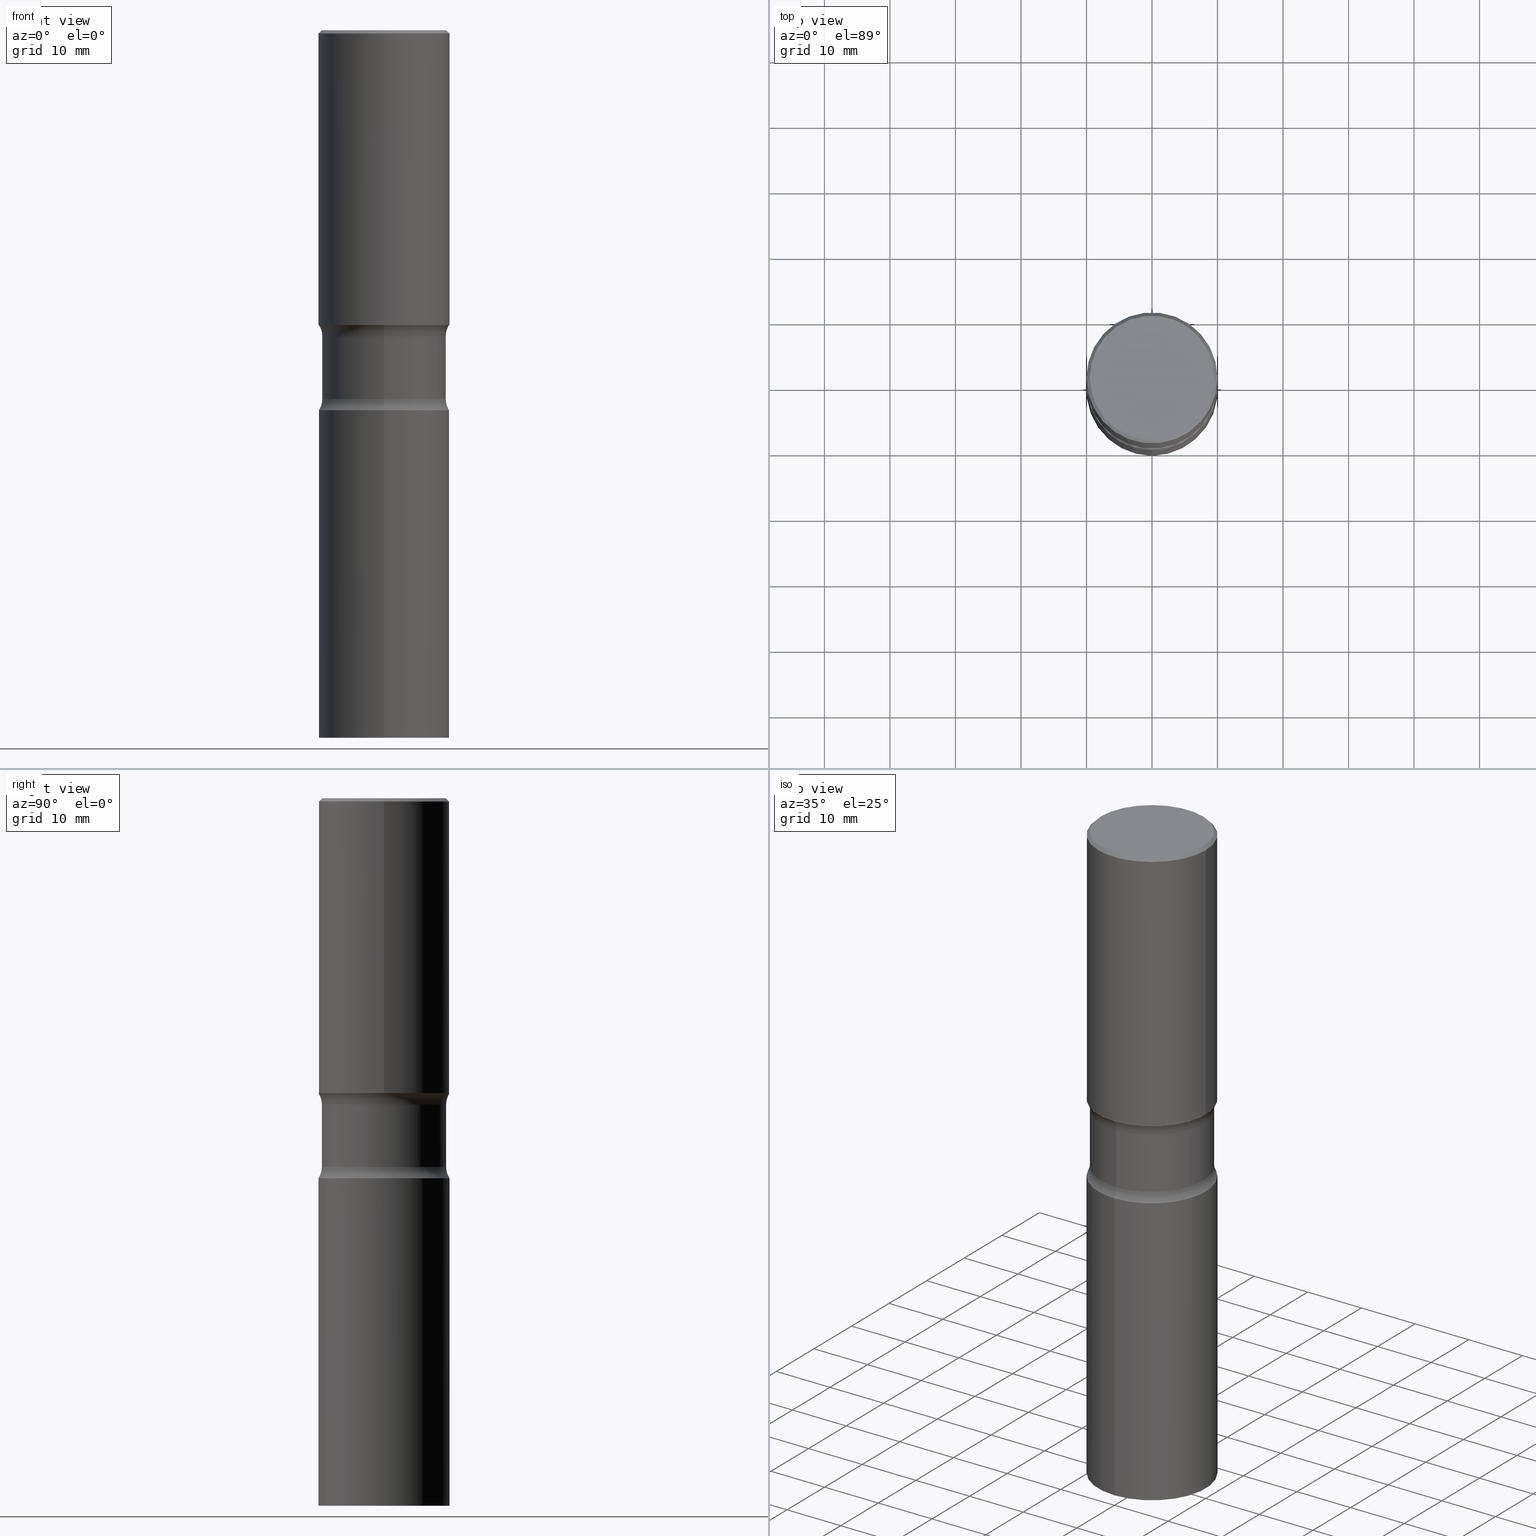
[diagram: canonical four-view strip — front | top / right | iso, engineering-drawing reading convention]
A machine part, canonical four-view strip (front | top / right | iso — engineering-drawing reading convention). The complete STEP part file that produces these views, byte-faithful:
ISO-10303-21;
HEADER;
FILE_DESCRIPTION (( 'STEP AP203' ),
    '1' );
FILE_NAME ('44636.STEP',
    '2024-03-11T13:38:39',
    ( '' ),
    ( '' ),
    'SwSTEP 2.0',
    'SolidWorks 2023',
    '' );
FILE_SCHEMA (( 'CONFIG_CONTROL_DESIGN' ));
ENDSEC;

DATA;
#1 = EDGE_CURVE ( 'NONE', #389, #82, #332, .T. ) ;
#2 = ORIENTED_EDGE ( 'NONE', *, *, #257, .F. ) ;
#3 = COORDINATED_UNIVERSAL_TIME_OFFSET ( 5, 0, .BEHIND. ) ;
#4 = APPROVAL ( #235, 'UNSPECIFIED' ) ;
#5 = ORIENTED_EDGE ( 'NONE', *, *, #196, .F. ) ;
#6 = CLOSED_SHELL ( 'NONE', ( #345, #102, #432, #325, #49, #431 ) ) ;
#7 = COORDINATED_UNIVERSAL_TIME_OFFSET ( 5, 0, .BEHIND. ) ;
#8 = LOCAL_TIME ( 9, 38, 39.00000000000000000, #243 ) ;
#9 = DIRECTION ( 'NONE',  ( -2.445468806185136597E-29, 3.491481338843145583E-15, 1.000000000000000000 ) ) ;
#10 = ORIENTED_EDGE ( 'NONE', *, *, #341, .T. ) ;
#11 = EDGE_CURVE ( 'NONE', #263, #273, #190, .T. ) ;
#12 = DIRECTION ( 'NONE',  ( 6.982962677686265922E-15, 1.000000000000000000, -3.657092360996335267E-15 ) ) ;
#13 = CARTESIAN_POINT ( 'NONE',  ( 5.584228018923760468E-29, -7.972797637248323132E-15, -2.283500000000000085 ) ) ;
#14 = AXIS2_PLACEMENT_3D ( 'NONE', #191, #83, #461 ) ;
#15 = MANIFOLD_SOLID_BREP ( 'Body-Move/Copy2[1]', #275 ) ;
#16 = CARTESIAN_POINT ( 'NONE',  ( 5.419952928499140621E-29, -7.731566087902375701E-15, -2.215368069159901143 ) ) ;
#17 = DIRECTION ( 'NONE',  ( 2.422342619709238593E-29, -3.524599354137422645E-15, -1.000000000000000000 ) ) ;
#18 = EDGE_CURVE ( 'NONE', #273, #263, #285, .T. ) ;
#19 = MANIFOLD_SOLID_BREP ( 'Body-Move/Copy2[2]', #6 ) ;
#20 = CARTESIAN_POINT ( 'NONE',  ( 2.749192406205126998E-15, 0.3936999999999938882, -1.771700000000000941 ) ) ;
#21 = VERTEX_POINT ( 'NONE', #254 ) ;
#22 = CARTESIAN_POINT ( 'NONE',  ( -2.749192406205083217E-15, -0.3937000000000001054, 1.374407621938595715E-15 ) ) ;
#23 = DIRECTION ( 'NONE',  ( 6.982962677686265922E-15, 1.000000000000000000, -3.491002341728716197E-15 ) ) ;
#24 = CC_DESIGN_APPROVAL ( #404, ( #175 ) ) ;
#25 = VERTEX_POINT ( 'NONE', #336 ) ;
#26 = ADVANCED_FACE ( 'NONE', ( #296 ), #390, .F. ) ;
#27 = CARTESIAN_POINT ( 'NONE',  ( 4.499251595492830041E-29, -6.423738853135956332E-15, -1.839831930840098329 ) ) ;
#28 = FACE_OUTER_BOUND ( 'NONE', #310, .T. ) ;
#29 = DIRECTION ( 'NONE',  ( -2.445468806185136597E-29, 3.491481338843145583E-15, 1.000000000000000000 ) ) ;
#30 = ORIENTED_EDGE ( 'NONE', *, *, #71, .F. ) ;
#31 = CARTESIAN_POINT ( 'NONE',  ( 0.000000000000000000, 0.000000000000000000, 0.000000000000000000 ) ) ;
#32 = ORIENTED_EDGE ( 'NONE', *, *, #400, .T. ) ;
#33 = AXIS2_PLACEMENT_3D ( 'NONE', #244, #412, #125 ) ;
#34 = DIRECTION ( 'NONE',  ( -2.445803288082414641E-29, 3.491002341728715803E-15, 1.000000000000000000 ) ) ;
#35 = EDGE_LOOP ( 'NONE', ( #260, #374, #202, #408 ) ) ;
#36 = FACE_OUTER_BOUND ( 'NONE', #35, .T. ) ;
#37 = ORIENTED_EDGE ( 'NONE', *, *, #252, .T. ) ;
#38 = DIRECTION ( 'NONE',  ( 2.422342619709238593E-29, -3.524599354137423040E-15, -1.000000000000000000 ) ) ;
#39 = APPROVAL_STATUS ( 'not_yet_approved' ) ;
#40 = VERTEX_POINT ( 'NONE', #453 ) ;
#41 = AXIS2_PLACEMENT_3D ( 'NONE', #371, #57, #487 ) ;
#42 = AXIS2_PLACEMENT_3D ( 'NONE', #407, #76, #258 ) ;
#43 = AXIS2_PLACEMENT_3D ( 'NONE', #266, #425, #269 ) ;
#44 = PERSON_AND_ORGANIZATION ( #443, #342 ) ;
#45 = DATE_AND_TIME ( #160, #8 ) ;
#46 = EDGE_LOOP ( 'NONE', ( #426, #471, #162, #482 ) ) ;
#47 = ORIENTED_EDGE ( 'NONE', *, *, #147, .F. ) ;
#48 = SECURITY_CLASSIFICATION_LEVEL ( 'unclassified' ) ;
#49 = ADVANCED_FACE ( 'NONE', ( #178 ), #451, .F. ) ;
#50 = VERTEX_POINT ( 'NONE', #59 ) ;
#51 = ADVANCED_FACE ( 'NONE', ( #493 ), #489, .T. ) ;
#52 = AXIS2_PLACEMENT_3D ( 'NONE', #414, #174, #486 ) ;
#53 = AXIS2_PLACEMENT_3D ( 'NONE', #154, #256, #464 ) ;
#54 = ORIENTED_EDGE ( 'NONE', *, *, #187, .F. ) ;
#55 = CARTESIAN_POINT ( 'NONE',  ( 2.609533152651356226E-15, 0.3736999999999998101, -1.300498063835582617E-15 ) ) ;
#56 = ORIENTED_EDGE ( 'NONE', *, *, #351, .T. ) ;
#57 = DIRECTION ( 'NONE',  ( 2.422342619709238593E-29, -3.524599354137422645E-15, -1.000000000000000000 ) ) ;
#58 = EDGE_CURVE ( 'NONE', #419, #276, #338, .T. ) ;
#59 = CARTESIAN_POINT ( 'NONE',  ( 2.749192406205139620E-15, 0.3936999999999921673, -2.283500000000001418 ) ) ;
#60 = AXIS2_PLACEMENT_3D ( 'NONE', #13, #368, #372 ) ;
#61 = CONICAL_SURFACE ( 'NONE', #268, 0.3936999999999998834, 0.7853981633974473908 ) ;
#62 = CARTESIAN_POINT ( 'NONE',  ( -0.3936999999999999389, 2.797406750687513998E-15, -1.936584745033356455E-29 ) ) ;
#63 = ORIENTED_EDGE ( 'NONE', *, *, #364, .F. ) ;
#64 = CC_DESIGN_DATE_AND_TIME_ASSIGNMENT ( #45, #200, ( #251 ) ) ;
#65 = FACE_OUTER_BOUND ( 'NONE', #106, .T. ) ;
#66 = CYLINDRICAL_SURFACE ( 'NONE', #155, 0.3936999999999999389 ) ;
#67 = DIRECTION ( 'NONE',  ( -2.445803288082414641E-29, 3.491002341728715803E-15, 1.000000000000000000 ) ) ;
#68 = ORIENTED_EDGE ( 'NONE', *, *, #401, .F. ) ;
#69 = FACE_OUTER_BOUND ( 'NONE', #287, .T. ) ;
#70 = CARTESIAN_POINT ( 'NONE',  ( 5.584228018923760468E-29, -7.972797637248323132E-15, -2.283500000000000085 ) ) ;
#71 = EDGE_CURVE ( 'NONE', #276, #419, #181, .T. ) ;
#72 = AXIS2_PLACEMENT_3D ( 'NONE', #146, #145, #501 ) ;
#73 = FACE_OUTER_BOUND ( 'NONE', #217, .T. ) ;
#74 = PERSON_AND_ORGANIZATION_ROLE ( 'design_owner' ) ;
#75 = CARTESIAN_POINT ( 'NONE',  ( 0.3936999999999999389, -2.749192406205082822E-15, 1.919750796630859611E-29 ) ) ;
#76 = DIRECTION ( 'NONE',  ( 2.422342619709238593E-29, -3.524599354137422645E-15, -1.000000000000000000 ) ) ;
#77 = DIRECTION ( 'NONE',  ( -0.7071067811865469066, 2.468850131082250355E-15, -0.7071067811865481278 ) ) ;
#78 = CARTESIAN_POINT ( 'NONE',  ( 0.000000000000000000, 0.000000000000000000, 0.000000000000000000 ) ) ;
#79 = ADVANCED_FACE ( 'NONE', ( #205 ), #208, .F. ) ;
#80 = PERSON_AND_ORGANIZATION ( #443, #342 ) ;
#81 = CIRCLE ( 'NONE', #365, 0.1249999999999999584 ) ;
#82 = VERTEX_POINT ( 'NONE', #417 ) ;
#83 = DIRECTION ( 'NONE',  ( -2.445468806185136597E-29, 3.491481338843145583E-15, 1.000000000000000000 ) ) ;
#84 = LENGTH_MEASURE_WITH_UNIT ( LENGTH_MEASURE( 0.02539999999999999897 ), #304 );
#85 = ADVANCED_FACE ( 'NONE', ( #416 ), #138, .F. ) ;
#86 = ADVANCED_FACE ( 'NONE', ( #28 ), #347, .T. ) ;
#87 = CIRCLE ( 'NONE', #42, 0.3937000000000000499 ) ;
#88 = EDGE_CURVE ( 'NONE', #402, #21, #233, .T. ) ;
#89 = AXIS2_PLACEMENT_3D ( 'NONE', #315, #151, #186 ) ;
#90 = PERSON_AND_ORGANIZATION_ROLE ( 'creator' ) ;
#91 = DIRECTION ( 'NONE',  ( -1.000000000000000000, 6.982962677686265922E-15, -4.876176775795935793E-29 ) ) ;
#92 = APPROVAL_DATE_TIME ( #433, #291 ) ;
#93 = ORIENTED_EDGE ( 'NONE', *, *, #88, .F. ) ;
#94 = TOROIDAL_SURFACE ( 'NONE', #298, 0.4984999999999999987, 0.1249999999999999306 ) ;
#95 = APPLICATION_CONTEXT ( 'configuration controlled 3d designs of mechanical parts and assemblies' ) ;
#96 = DIRECTION ( 'NONE',  ( 1.000000000000000000, -6.982962677686266711E-15, 0.000000000000000000 ) ) ;
#97 = CARTESIAN_POINT ( 'NONE',  ( 4.510275735406058081E-29, -6.407951657325135987E-15, -1.839831930840098329 ) ) ;
#98 = LINE ( 'NONE', #207, #405 ) ;
#99 = CARTESIAN_POINT ( 'NONE',  ( 1.035337325523382990E-28, -1.490987767595703701E-14, -4.251999999999999780 ) ) ;
#100 = CIRCLE ( 'NONE', #391, 0.3735000000000001097 ) ;
#101 = DIRECTION ( 'NONE',  ( 2.422342619709238593E-29, -3.524599354137422645E-15, -1.000000000000000000 ) ) ;
#102 = ADVANCED_FACE ( 'NONE', ( #210 ), #253, .T. ) ;
#103 = CARTESIAN_POINT ( 'NONE',  ( -2.631687031945114564E-15, -0.3735000000000064380, -1.839831930840096996 ) ) ;
#104 = DIRECTION ( 'NONE',  ( 6.982962677686265922E-15, 1.000000000000000000, -2.925673888797068529E-15 ) ) ;
#105 = CARTESIAN_POINT ( 'NONE',  ( 4.332637083918205306E-29, -6.185857488028398715E-15, -1.771699999999999608 ) ) ;
#106 = EDGE_LOOP ( 'NONE', ( #327, #394, #437, #63 ) ) ;
#107 = VECTOR ( 'NONE', #466, 39.37007874015748143 ) ;
#108 = CYLINDRICAL_SURFACE ( 'NONE', #434, 0.3937000000000001054 ) ;
#109 = DIRECTION ( 'NONE',  ( -6.982962677686265133E-15, -1.000000000000000000, 0.000000000000000000 ) ) ;
#110 = CARTESIAN_POINT ( 'NONE',  ( 0.000000000000000000, 0.000000000000000000, 0.000000000000000000 ) ) ;
#111 = EDGE_LOOP ( 'NONE', ( #56, #188 ) ) ;
#112 = PRODUCT_DEFINITION_SHAPE ( 'NONE', 'NONE',  #251 ) ;
#113 =( CONVERSION_BASED_UNIT ( 'INCH', #84 ) LENGTH_UNIT ( ) NAMED_UNIT ( #140 ) );
#114 = AXIS2_PLACEMENT_3D ( 'NONE', #99, #247, #104 ) ;
#115 = VECTOR ( 'NONE', #446, 39.37007874015748143 ) ;
#116 = EDGE_CURVE ( 'NONE', #21, #402, #87, .T. ) ;
#117 = APPLICATION_PROTOCOL_DEFINITION ( 'international standard', 'config_control_design', 1994, #95 ) ;
#118 = ORIENTED_EDGE ( 'NONE', *, *, #58, .T. ) ;
#119 = PERSON_AND_ORGANIZATION ( #443, #342 ) ;
#120 = ORIENTED_EDGE ( 'NONE', *, *, #11, .F. ) ;
#121 = LOCAL_TIME ( 9, 38, 39.00000000000000000, #3 ) ;
#122 = PERSON_AND_ORGANIZATION ( #443, #342 ) ;
#123 = EDGE_LOOP ( 'NONE', ( #5, #355, #10, #47 ) ) ;
#124 = CARTESIAN_POINT ( 'NONE',  ( 5.419952928499140621E-29, -7.731566087902375701E-15, -2.215368069159901143 ) ) ;
#125 = DIRECTION ( 'NONE',  ( -1.000000000000000000, 6.982962677686266711E-15, 0.000000000000000000 ) ) ;
#126 = PERSON_AND_ORGANIZATION ( #443, #342 ) ;
#127 = ORIENTED_EDGE ( 'NONE', *, *, #11, .T. ) ;
#128 = VERTEX_POINT ( 'NONE', #300 ) ;
#129 = VECTOR ( 'NONE', #38, 39.37007874015748143 ) ;
#130 = EDGE_CURVE ( 'NONE', #383, #50, #449, .T. ) ;
#131 = CARTESIAN_POINT ( 'NONE',  ( 4.345236855569004281E-29, -6.167813897889988397E-15, -1.771699999999999608 ) ) ;
#132 = ADVANCED_FACE ( 'NONE', ( #452 ), #136, .T. ) ;
#133 = DIRECTION ( 'NONE',  ( -2.445468806185136597E-29, 3.491481338843145583E-15, 1.000000000000000000 ) ) ;
#134 = FACE_OUTER_BOUND ( 'NONE', #465, .T. ) ;
#135 = EDGE_LOOP ( 'NONE', ( #68, #118, #37, #502 ) ) ;
#136 = CYLINDRICAL_SURFACE ( 'NONE', #490, 0.3735000000000000542 ) ;
#137 = DIRECTION ( 'NONE',  ( 2.422342619709238593E-29, -3.524599354137422645E-15, -1.000000000000000000 ) ) ;
#138 = PLANE ( 'NONE',  #398 ) ;
#139 = CIRCLE ( 'NONE', #427, 0.3735000000000001097 ) ;
#140 = DIMENSIONAL_EXPONENTS ( 1.000000000000000000, 0.000000000000000000, 0.000000000000000000, 0.000000000000000000, 0.000000000000000000, 0.000000000000000000, 0.000000000000000000 ) ;
#141 = DIRECTION ( 'NONE',  ( -6.982962677686265133E-15, -1.000000000000000000, 0.000000000000000000 ) ) ;
#142 = DIRECTION ( 'NONE',  ( 2.422342619709238593E-29, -3.524599354137422645E-15, -1.000000000000000000 ) ) ;
#143 = DIRECTION ( 'NONE',  ( 1.000000000000000000, -6.982962677686266711E-15, 4.876212485538977921E-29 ) ) ;
#144 = DIRECTION ( 'NONE',  ( -2.445803288082414641E-29, 3.491002341728715803E-15, 1.000000000000000000 ) ) ;
#145 = DIRECTION ( 'NONE',  ( 1.000000000000000000, -6.860497997771530774E-15, 4.840393300909900172E-29 ) ) ;
#146 = CARTESIAN_POINT ( 'NONE',  ( -3.419958251889054030E-15, -0.4985000000000077147, -2.215368069159899811 ) ) ;
#147 = EDGE_CURVE ( 'NONE', #25, #237, #346, .T. ) ;
#148 = EDGE_LOOP ( 'NONE', ( #469, #397 ) ) ;
#149 = CIRCLE ( 'NONE', #43, 0.3937000000000001054 ) ;
#150 = FACE_OUTER_BOUND ( 'NONE', #211, .T. ) ;
#151 = DIRECTION ( 'NONE',  ( 2.422342619709238593E-29, -3.524599354137422645E-15, -1.000000000000000000 ) ) ;
#152 = ORIENTED_EDGE ( 'NONE', *, *, #484, .T. ) ;
#153 = DIRECTION ( 'NONE',  ( -6.982962677686265133E-15, -1.000000000000000000, 3.491002341728715803E-15 ) ) ;
#154 = CARTESIAN_POINT ( 'NONE',  ( -3.419958251889063102E-15, -0.4985000000000064380, -1.839831930840096774 ) ) ;
#155 = AXIS2_PLACEMENT_3D ( 'NONE', #478, #367, #171 ) ;
#156 = CYLINDRICAL_SURFACE ( 'NONE', #472, 0.3937000000000001054 ) ;
#157 = LOCAL_TIME ( 9, 38, 39.00000000000000000, #280 ) ;
#158 = APPROVAL_DATE_TIME ( #272, #404 ) ;
#159 = EDGE_LOOP ( 'NONE', ( #248, #152 ) ) ;
#160 = CALENDAR_DATE ( 2024, 11, 3 ) ;
#161 = CALENDAR_DATE ( 2024, 11, 3 ) ;
#162 = ORIENTED_EDGE ( 'NONE', *, *, #319, .F. ) ;
#163 = ADVANCED_FACE ( 'NONE', ( #65 ), #94, .F. ) ;
#164 = AXIS2_PLACEMENT_3D ( 'NONE', #55, #172, #91 ) ;
#165 = CIRCLE ( 'NONE', #53, 0.1250000000000000278 ) ;
#166 = DATE_TIME_ROLE ( 'classification_date' ) ;
#167 = DIRECTION ( 'NONE',  ( 6.982962677686265922E-15, 1.000000000000000000, -3.657092360996335267E-15 ) ) ;
#168 = CC_DESIGN_PERSON_AND_ORGANIZATION_ASSIGNMENT ( #122, #201, ( #175 ) ) ;
#169 = VERTEX_POINT ( 'NONE', #209 ) ;
#170 = ORIENTED_EDGE ( 'NONE', *, *, #462, .F. ) ;
#171 = DIRECTION ( 'NONE',  ( 1.000000000000000000, -6.982962677686266711E-15, 4.876176775795935793E-29 ) ) ;
#172 = DIRECTION ( 'NONE',  ( 2.438088387897960049E-29, -3.491481338843145188E-15, -1.000000000000000000 ) ) ;
#173 = VECTOR ( 'NONE', #494, 39.37007874015748143 ) ;
#174 = DIRECTION ( 'NONE',  ( -2.445468806185136597E-29, 3.491481338843145583E-15, 1.000000000000000000 ) ) ;
#175 = PRODUCT_DEFINITION_FORMATION_WITH_SPECIFIED_SOURCE ( 'ANY', '', #223, .NOT_KNOWN. ) ;
#176 = CARTESIAN_POINT ( 'NONE',  ( 1.039955558092642645E-28, -1.484374195703049851E-14, -4.251999999999999780 ) ) ;
#177 = ADVANCED_FACE ( 'NONE', ( #69 ), #305, .F. ) ;
#178 = FACE_OUTER_BOUND ( 'NONE', #148, .T. ) ;
#179 = AXIS2_PLACEMENT_3D ( 'NONE', #328, #288, #492 ) ;
#180 = CARTESIAN_POINT ( 'NONE',  ( 1.039955558092642645E-28, -1.484374195703049851E-14, -4.251999999999999780 ) ) ;
#181 = CIRCLE ( 'NONE', #480, 0.3734999999999999987 ) ;
#182 = EDGE_LOOP ( 'NONE', ( #460, #30, #352, #279 ) ) ;
#183 = DIRECTION ( 'NONE',  ( 2.422342619709238593E-29, -3.524599354137422645E-15, -1.000000000000000000 ) ) ;
#184 = ORIENTED_EDGE ( 'NONE', *, *, #388, .T. ) ;
#185 = DIRECTION ( 'NONE',  ( 2.422342619709238593E-29, -3.524599354137422645E-15, -1.000000000000000000 ) ) ;
#186 = DIRECTION ( 'NONE',  ( 6.982962677686265133E-15, 1.000000000000000000, -3.469453890861395179E-15 ) ) ;
#187 = EDGE_CURVE ( 'NONE', #273, #323, #302, .T. ) ;
#188 = ORIENTED_EDGE ( 'NONE', *, *, #196, .T. ) ;
#189 = MANIFOLD_SOLID_BREP ( 'Body-Move/Copy2[4]', #479 ) ;
#190 = CIRCLE ( 'NONE', #507, 0.3937000000000001054 ) ;
#191 = CARTESIAN_POINT ( 'NONE',  ( 4.332637083918205306E-29, -6.185857488028398715E-15, -1.771699999999999608 ) ) ;
#192 = DIRECTION ( 'NONE',  ( 6.982962677686265922E-15, 1.000000000000000000, -3.524599354137422251E-15 ) ) ;
#193 = ORIENTED_EDGE ( 'NONE', *, *, #440, .T. ) ;
#194 = DIRECTION ( 'NONE',  ( -6.982962677686265133E-15, -1.000000000000000000, 3.469453890861395179E-15 ) ) ;
#195 = EDGE_LOOP ( 'NONE', ( #429, #344, #435, #54 ) ) ;
#196 = EDGE_CURVE ( 'NONE', #389, #25, #213, .T. ) ;
#197 = APPROVAL_ROLE ( '' ) ;
#198 = ORIENTED_EDGE ( 'NONE', *, *, #187, .T. ) ;
#199 = APPROVAL_PERSON_ORGANIZATION ( #80, #291, #197 ) ;
#200 = DATE_TIME_ROLE ( 'creation_date' ) ;
#201 = PERSON_AND_ORGANIZATION_ROLE ( 'design_supplier' ) ;
#202 = ORIENTED_EDGE ( 'NONE', *, *, #257, .T. ) ;
#203 = DIRECTION ( 'NONE',  ( 6.982962677686265922E-15, 1.000000000000000000, -3.657092360996336056E-15 ) ) ;
#204 = AXIS2_PLACEMENT_3D ( 'NONE', #105, #381, #348 ) ;
#205 = FACE_OUTER_BOUND ( 'NONE', #320, .T. ) ;
#206 = DIRECTION ( 'NONE',  ( 6.982962677686265133E-15, 1.000000000000000000, -3.469453890861395179E-15 ) ) ;
#207 = CARTESIAN_POINT ( 'NONE',  ( -2.562396002167563676E-15, -0.3735000000000149312, -4.251999999999998892 ) ) ;
#208 = PLANE ( 'NONE',  #60 ) ;
#209 = CARTESIAN_POINT ( 'NONE',  ( 0.3937000000000000499, -8.935049894233482720E-15, -1.771699999999999608 ) ) ;
#210 = FACE_OUTER_BOUND ( 'NONE', #123, .T. ) ;
#211 = EDGE_LOOP ( 'NONE', ( #231, #334, #226, #184 ) ) ;
#212 = CARTESIAN_POINT ( 'NONE',  ( 5.417613507349135172E-29, -7.734916272140765514E-15, -2.215368069159901143 ) ) ;
#213 = CIRCLE ( 'NONE', #369, 0.3736999999999998101 ) ;
#214 = DIRECTION ( 'NONE',  ( 6.982962677686265922E-15, 1.000000000000000000, -3.657092360996336056E-15 ) ) ;
#215 = APPROVAL_PERSON_ORGANIZATION ( #119, #404, #360 ) ;
#216 = ADVANCED_FACE ( 'NONE', ( #73 ), #454, .F. ) ;
#217 = EDGE_LOOP ( 'NONE', ( #93, #498 ) ) ;
#218 = LINE ( 'NONE', #75, #107 ) ;
#219 = CC_DESIGN_DATE_AND_TIME_ASSIGNMENT ( #438, #166, ( #508 ) ) ;
#220 = DIRECTION ( 'NONE',  ( 6.982962677686265922E-15, 1.000000000000000000, -3.524599354137422251E-15 ) ) ;
#221 = DIRECTION ( 'NONE',  ( 0.000000000000000000, 0.000000000000000000, 1.000000000000000000 ) ) ;
#222 = ORIENTED_EDGE ( 'NONE', *, *, #265, .F. ) ;
#223 = PRODUCT ( '44636', '44636', '', ( #504 ) ) ;
#224 = DIRECTION ( 'NONE',  ( 1.000000000000000000, 0.000000000000000000, 0.000000000000000000 ) ) ;
#225 = AXIS2_PLACEMENT_3D ( 'NONE', #366, #9, #96 ) ;
#226 = ORIENTED_EDGE ( 'NONE', *, *, #147, .T. ) ;
#227 = DIRECTION ( 'NONE',  ( 2.422342619709238593E-29, -3.524599354137422645E-15, -1.000000000000000000 ) ) ;
#228 = EDGE_CURVE ( 'NONE', #40, #169, #439, .T. ) ;
#229 = ORIENTED_EDGE ( 'NONE', *, *, #497, .T. ) ;
#230 = DIRECTION ( 'NONE',  ( 2.445468806185136597E-29, -3.491481338843145583E-15, -1.000000000000000000 ) ) ;
#231 = ORIENTED_EDGE ( 'NONE', *, *, #1, .F. ) ;
#232 = CARTESIAN_POINT ( 'NONE',  ( 2.608136560115865171E-15, 0.3734999999999935594, -1.839831930840099661 ) ) ;
#233 = CIRCLE ( 'NONE', #245, 0.3937000000000000499 ) ;
#234 = LOCAL_TIME ( 9, 38, 39.00000000000000000, #7 ) ;
#235 = APPROVAL_STATUS ( 'not_yet_approved' ) ;
#236 = SHAPE_DEFINITION_REPRESENTATION ( #112, #295 ) ;
#237 = VERTEX_POINT ( 'NONE', #445 ) ;
#238 = APPROVAL_ROLE ( '' ) ;
#239 = EDGE_CURVE ( 'NONE', #323, #128, #357, .T. ) ;
#240 = FACE_OUTER_BOUND ( 'NONE', #111, .T. ) ;
#241 = AXIS2_PLACEMENT_3D ( 'NONE', #311, #227, #192 ) ;
#242 = LOCAL_TIME ( 9, 38, 39.00000000000000000, #358 ) ;
#243 = COORDINATED_UNIVERSAL_TIME_OFFSET ( 5, 0, .BEHIND. ) ;
#244 = CARTESIAN_POINT ( 'NONE',  ( 4.890937612370294178E-31, -6.982962677686321191E-17, -0.02000000000000008715 ) ) ;
#245 = AXIS2_PLACEMENT_3D ( 'NONE', #131, #101, #290 ) ;
#246 = FACE_OUTER_BOUND ( 'NONE', #182, .T. ) ;
#247 = DIRECTION ( 'NONE',  ( 2.422342619709238593E-29, -3.524599354137422645E-15, -1.000000000000000000 ) ) ;
#248 = ORIENTED_EDGE ( 'NONE', *, *, #239, .T. ) ;
#249 = CARTESIAN_POINT ( 'NONE',  ( 1.035337325523382990E-28, -1.490987767595703701E-14, -4.251999999999999780 ) ) ;
#250 = DIRECTION ( 'NONE',  ( 1.000000000000000000, -6.982962677686265922E-15, 4.876176775795935793E-29 ) ) ;
#251 = PRODUCT_DEFINITION ( 'UNKNOWN', '', #175, #292 ) ;
#252 = EDGE_CURVE ( 'NONE', #276, #476, #261, .T. ) ;
#253 = CONICAL_SURFACE ( 'NONE', #33, 0.3936999999999998834, 0.7853981633974473908 ) ;
#254 = CARTESIAN_POINT ( 'NONE',  ( -2.700978061722607865E-15, -0.3937000000000062117, -1.771699999999998276 ) ) ;
#255 = APPROVAL_PERSON_ORGANIZATION ( #278, #4, #238 ) ;
#256 = DIRECTION ( 'NONE',  ( 1.000000000000000000, -6.860497997771530774E-15, 4.840393300909900172E-29 ) ) ;
#257 = EDGE_CURVE ( 'NONE', #169, #82, #218, .T. ) ;
#258 = DIRECTION ( 'NONE',  ( 6.982962677686265133E-15, 1.000000000000000000, -3.469453890861395573E-15 ) ) ;
#259 = CARTESIAN_POINT ( 'NONE',  ( 2.608136560115875426E-15, 0.3734999999999923936, -2.215368069159902475 ) ) ;
#260 = ORIENTED_EDGE ( 'NONE', *, *, #400, .F. ) ;
#261 = LINE ( 'NONE', #395, #129 ) ;
#262 = DIRECTION ( 'NONE',  ( -6.982962677686265133E-15, -1.000000000000000000, 3.491002341728715803E-15 ) ) ;
#263 = VERTEX_POINT ( 'NONE', #384 ) ;
#264 = LINE ( 'NONE', #307, #339 ) ;
#265 = EDGE_CURVE ( 'NONE', #263, #128, #264, .T. ) ;
#266 = CARTESIAN_POINT ( 'NONE',  ( 5.584991808336194421E-29, -7.971703847337524080E-15, -2.283500000000000085 ) ) ;
#267 = CIRCLE ( 'NONE', #52, 0.3936999999999998834 ) ;
#268 = AXIS2_PLACEMENT_3D ( 'NONE', #392, #230, #387 ) ;
#269 = DIRECTION ( 'NONE',  ( -6.982962677686265133E-15, -1.000000000000000000, 3.469453890861395179E-15 ) ) ;
#270 = EDGE_CURVE ( 'NONE', #169, #40, #456, .T. ) ;
#271 = DIRECTION ( 'NONE',  ( -2.445803288082414921E-29, 3.491002341728716197E-15, 1.000000000000000000 ) ) ;
#272 = DATE_AND_TIME ( #470, #121 ) ;
#273 = VERTEX_POINT ( 'NONE', #506 ) ;
#274 = CALENDAR_DATE ( 2024, 11, 3 ) ;
#275 = CLOSED_SHELL ( 'NONE', ( #468, #308, #85, #86 ) ) ;
#276 = VERTEX_POINT ( 'NONE', #232 ) ;
#277 = AXIS2_PLACEMENT_3D ( 'NONE', #430, #313, #194 ) ;
#278 = PERSON_AND_ORGANIZATION ( #443, #342 ) ;
#279 = ORIENTED_EDGE ( 'NONE', *, *, #88, .T. ) ;
#280 = COORDINATED_UNIVERSAL_TIME_OFFSET ( 5, 0, .BEHIND. ) ;
#281 = ORIENTED_EDGE ( 'NONE', *, *, #270, .T. ) ;
#282 = EDGE_CURVE ( 'NONE', #276, #402, #376, .T. ) ;
#283 = APPROVAL_DATE_TIME ( #321, #4 ) ;
#284 = EDGE_LOOP ( 'NONE', ( #222, #127, #198, #505 ) ) ;
#285 = CIRCLE ( 'NONE', #297, 0.3937000000000001054 ) ;
#286 = AXIS2_PLACEMENT_3D ( 'NONE', #420, #185, #206 ) ;
#287 = EDGE_LOOP ( 'NONE', ( #362, #193, #324, #441 ) ) ;
#288 = DIRECTION ( 'NONE',  ( -2.445468806185136597E-29, 3.491481338843145583E-15, 1.000000000000000000 ) ) ;
#289 = ORIENTED_EDGE ( 'NONE', *, *, #319, .T. ) ;
#290 = DIRECTION ( 'NONE',  ( 6.982962677686265133E-15, 1.000000000000000000, -3.469453890861395573E-15 ) ) ;
#291 = APPROVAL ( #39, 'UNSPECIFIED' ) ;
#292 = DESIGN_CONTEXT ( 'detailed design', #95, 'design' ) ;
#293 = DIRECTION ( 'NONE',  ( 1.000000000000000000, -6.982962677686267499E-15, 0.000000000000000000 ) ) ;
#294 = CARTESIAN_POINT ( 'NONE',  ( 0.3736999999999998101, -2.667287895133367570E-15, 8.537024980219274507E-18 ) ) ;
#295 = ADVANCED_BREP_SHAPE_REPRESENTATION ( '44636', ( #15, #19, #189, #428 ), #473 ) ;
#296 = FACE_OUTER_BOUND ( 'NONE', #316, .T. ) ;
#297 = AXIS2_PLACEMENT_3D ( 'NONE', #176, #67, #343 ) ;
#298 = AXIS2_PLACEMENT_3D ( 'NONE', #212, #378, #220 ) ;
#299 = DIRECTION ( 'NONE',  ( -6.982962677686265133E-15, -1.000000000000000000, 4.163344669033674057E-15 ) ) ;
#300 = CARTESIAN_POINT ( 'NONE',  ( 2.797406750687618916E-15, 0.3936999999999921118, -2.283500000000001418 ) ) ;
#301 = CARTESIAN_POINT ( 'NONE',  ( 1.039813336389919950E-28, -1.484577865276105326E-14, -4.251999999999999780 ) ) ;
#302 = LINE ( 'NONE', #22, #173 ) ;
#303 = CARTESIAN_POINT ( 'NONE',  ( 4.332637083918205306E-29, -6.185857488028398715E-15, -1.771699999999999608 ) ) ;
#304 =( LENGTH_UNIT ( ) NAMED_UNIT ( * ) SI_UNIT ( $, .METRE. ) );
#305 = TOROIDAL_SURFACE ( 'NONE', #329, 0.4984999999999999987, 0.1250000000000000278 ) ;
#306 = CYLINDRICAL_SURFACE ( 'NONE', #457, 0.3936999999999999389 ) ;
#307 = CARTESIAN_POINT ( 'NONE',  ( 2.797406750687514786E-15, 0.3937000000000001054, -1.374407621938595715E-15 ) ) ;
#308 = ADVANCED_FACE ( 'NONE', ( #424 ), #156, .T. ) ;
#309 =( NAMED_UNIT ( * ) PLANE_ANGLE_UNIT ( ) SI_UNIT ( $, .RADIAN. ) );
#310 = EDGE_LOOP ( 'NONE', ( #312, #120 ) ) ;
#311 = CARTESIAN_POINT ( 'NONE',  ( 4.499251595492830041E-29, -6.423738853135956332E-15, -1.839831930840098329 ) ) ;
#312 = ORIENTED_EDGE ( 'NONE', *, *, #18, .F. ) ;
#313 = DIRECTION ( 'NONE',  ( -2.445803288082414641E-29, 3.491002341728715803E-15, 1.000000000000000000 ) ) ;
#314 = CIRCLE ( 'NONE', #179, 0.3736999999999998101 ) ;
#315 = CARTESIAN_POINT ( 'NONE',  ( 5.584991808336194421E-29, -7.971703847337524080E-15, -2.283500000000000085 ) ) ;
#316 = EDGE_LOOP ( 'NONE', ( #170, #500, #359, #289 ) ) ;
#317 = DIRECTION ( 'NONE',  ( -2.445803288082414641E-29, 3.491002341728715803E-15, 1.000000000000000000 ) ) ;
#318 = CALENDAR_DATE ( 2024, 11, 3 ) ;
#319 = EDGE_CURVE ( 'NONE', #476, #375, #100, .T. ) ;
#320 = EDGE_LOOP ( 'NONE', ( #229, #474 ) ) ;
#321 = DATE_AND_TIME ( #161, #157 ) ;
#322 = CC_DESIGN_PERSON_AND_ORGANIZATION_ASSIGNMENT ( #126, #363, ( #508 ) ) ;
#323 = VERTEX_POINT ( 'NONE', #477 ) ;
#324 = ORIENTED_EDGE ( 'NONE', *, *, #116, .T. ) ;
#325 = ADVANCED_FACE ( 'NONE', ( #240 ), #326, .F. ) ;
#326 = PLANE ( 'NONE',  #164 ) ;
#327 = ORIENTED_EDGE ( 'NONE', *, *, #130, .F. ) ;
#328 = CARTESIAN_POINT ( 'NONE',  ( -2.087702828670439639E-46, 2.980686340760894400E-32, 8.537024980200822558E-18 ) ) ;
#329 = AXIS2_PLACEMENT_3D ( 'NONE', #27, #183, #373 ) ;
#330 = CC_DESIGN_SECURITY_CLASSIFICATION ( #508, ( #175 ) ) ;
#331 = DIRECTION ( 'NONE',  ( 2.422342619709238593E-29, -3.524599354137423040E-15, -1.000000000000000000 ) ) ;
#332 = LINE ( 'NONE', #444, #448 ) ;
#333 = CARTESIAN_POINT ( 'NONE',  ( -2.700978061722596426E-15, -0.3937000000000080990, -2.283499999999998753 ) ) ;
#334 = ORIENTED_EDGE ( 'NONE', *, *, #351, .F. ) ;
#335 = LINE ( 'NONE', #62, #115 ) ;
#336 = CARTESIAN_POINT ( 'NONE',  ( -0.3736999999999998101, 2.644447966039787875E-15, 8.537024980182450727E-18 ) ) ;
#337 = AXIS2_PLACEMENT_3D ( 'NONE', #303, #447, #250 ) ;
#338 = CIRCLE ( 'NONE', #356, 0.3734999999999999987 ) ;
#339 = VECTOR ( 'NONE', #271, 39.37007874015748143 ) ;
#340 = CARTESIAN_POINT ( 'NONE',  ( -2.087702828670439639E-46, 2.980686340760894400E-32, 8.537024980200822558E-18 ) ) ;
#341 = EDGE_CURVE ( 'NONE', #82, #237, #418, .T. ) ;
#342 = ORGANIZATION ( 'UNSPECIFIED', 'UNSPECIFIED', '' ) ;
#343 = DIRECTION ( 'NONE',  ( -6.982962677686265133E-15, -1.000000000000000000, 4.163344669033674057E-15 ) ) ;
#344 = ORIENTED_EDGE ( 'NONE', *, *, #265, .T. ) ;
#345 = ADVANCED_FACE ( 'NONE', ( #134 ), #66, .T. ) ;
#346 = LINE ( 'NONE', #488, #350 ) ;
#347 = PLANE ( 'NONE',  #406 ) ;
#348 = DIRECTION ( 'NONE',  ( 6.982962677686265922E-15, 1.000000000000000000, -3.524599354137423040E-15 ) ) ;
#349 = PERSON_AND_ORGANIZATION ( #443, #342 ) ;
#350 = VECTOR ( 'NONE', #77, 39.37007874015748143 ) ;
#351 = EDGE_CURVE ( 'NONE', #25, #389, #314, .T. ) ;
#352 = ORIENTED_EDGE ( 'NONE', *, *, #282, .T. ) ;
#353 = DIRECTION ( 'NONE',  ( -1.000000000000000000, 6.982962677686265922E-15, -4.883557194083112340E-29 ) ) ;
#354 = CARTESIAN_POINT ( 'NONE',  ( 0.000000000000000000, 0.000000000000000000, 0.000000000000000000 ) ) ;
#355 = ORIENTED_EDGE ( 'NONE', *, *, #1, .T. ) ;
#356 = AXIS2_PLACEMENT_3D ( 'NONE', #455, #142, #203 ) ;
#357 = CIRCLE ( 'NONE', #277, 0.3937000000000001054 ) ;
#358 = COORDINATED_UNIVERSAL_TIME_OFFSET ( 5, 0, .BEHIND. ) ;
#359 = ORIENTED_EDGE ( 'NONE', *, *, #364, .T. ) ;
#360 = APPROVAL_ROLE ( '' ) ;
#361 = PRODUCT_RELATED_PRODUCT_CATEGORY ( 'detail', '', ( #223 ) ) ;
#362 = ORIENTED_EDGE ( 'NONE', *, *, #58, .F. ) ;
#363 = PERSON_AND_ORGANIZATION_ROLE ( 'classification_officer' ) ;
#364 = EDGE_CURVE ( 'NONE', #50, #476, #81, .T. ) ;
#365 = AXIS2_PLACEMENT_3D ( 'NONE', #442, #409, #141 ) ;
#366 = CARTESIAN_POINT ( 'NONE',  ( 4.890937612370294178E-31, -6.982962677686321191E-17, -0.02000000000000008715 ) ) ;
#367 = DIRECTION ( 'NONE',  ( -2.445468806185136597E-29, 3.491481338843145583E-15, 1.000000000000000000 ) ) ;
#368 = DIRECTION ( 'NONE',  ( -2.422342619709238032E-29, 3.524599354137423040E-15, 1.000000000000000000 ) ) ;
#369 = AXIS2_PLACEMENT_3D ( 'NONE', #340, #458, #143 ) ;
#370 = CC_DESIGN_APPROVAL ( #4, ( #508 ) ) ;
#371 = CARTESIAN_POINT ( 'NONE',  ( 5.417613507349135172E-29, -7.734916272140765514E-15, -2.215368069159901143 ) ) ;
#372 = DIRECTION ( 'NONE',  ( -6.982962677686265922E-15, -1.000000000000000000, 3.524599354137423040E-15 ) ) ;
#373 = DIRECTION ( 'NONE',  ( 6.982962677686265922E-15, 1.000000000000000000, -3.524599354137422251E-15 ) ) ;
#374 = ORIENTED_EDGE ( 'NONE', *, *, #228, .T. ) ;
#375 = VERTEX_POINT ( 'NONE', #411 ) ;
#376 = CIRCLE ( 'NONE', #413, 0.1250000000000000278 ) ;
#377 = CIRCLE ( 'NONE', #72, 0.1249999999999999584 ) ;
#378 = DIRECTION ( 'NONE',  ( 2.422342619709238593E-29, -3.524599354137422645E-15, -1.000000000000000000 ) ) ;
#379 = DIRECTION ( 'NONE',  ( 2.445803288082414360E-29, -3.491002341728716197E-15, -1.000000000000000000 ) ) ;
#380 = EDGE_CURVE ( 'NONE', #375, #476, #139, .T. ) ;
#381 = DIRECTION ( 'NONE',  ( 2.422342619709238032E-29, -3.524599354137423040E-15, -1.000000000000000000 ) ) ;
#382 = APPLICATION_PROTOCOL_DEFINITION ( 'international standard', 'config_control_design', 1994, #422 ) ;
#383 = VERTEX_POINT ( 'NONE', #333 ) ;
#384 = CARTESIAN_POINT ( 'NONE',  ( 2.797406750687594856E-15, 0.3936999999999852839, -4.252000000000001556 ) ) ;
#385 = CARTESIAN_POINT ( 'NONE',  ( 4.332637083918205306E-29, -6.185857488028398715E-15, -1.771699999999999608 ) ) ;
#386 = CC_DESIGN_PERSON_AND_ORGANIZATION_ASSIGNMENT ( #349, #74, ( #223 ) ) ;
#387 = DIRECTION ( 'NONE',  ( -1.000000000000000000, 6.982962677686266711E-15, 0.000000000000000000 ) ) ;
#388 = EDGE_CURVE ( 'NONE', #237, #82, #267, .T. ) ;
#389 = VERTEX_POINT ( 'NONE', #294 ) ;
#390 = TOROIDAL_SURFACE ( 'NONE', #41, 0.4984999999999999987, 0.1249999999999999306 ) ;
#391 = AXIS2_PLACEMENT_3D ( 'NONE', #124, #436, #167 ) ;
#392 = CARTESIAN_POINT ( 'NONE',  ( 4.890937612370294178E-31, -6.982962677686321191E-17, -0.02000000000000008715 ) ) ;
#393 = CC_DESIGN_PERSON_AND_ORGANIZATION_ASSIGNMENT ( #403, #90, ( #175 ) ) ;
#394 = ORIENTED_EDGE ( 'NONE', *, *, #462, .T. ) ;
#395 = CARTESIAN_POINT ( 'NONE',  ( 2.608136560115923941E-15, 0.3734999999999851772, -4.252000000000000668 ) ) ;
#396 =( NAMED_UNIT ( * ) SI_UNIT ( $, .STERADIAN. ) SOLID_ANGLE_UNIT ( ) );
#397 = ORIENTED_EDGE ( 'NONE', *, *, #228, .F. ) ;
#398 = AXIS2_PLACEMENT_3D ( 'NONE', #70, #379, #23 ) ;
#399 = PERSON_AND_ORGANIZATION_ROLE ( 'creator' ) ;
#400 = EDGE_CURVE ( 'NONE', #40, #237, #335, .T. ) ;
#401 = EDGE_CURVE ( 'NONE', #419, #375, #98, .T. ) ;
#402 = VERTEX_POINT ( 'NONE', #20 ) ;
#403 = PERSON_AND_ORGANIZATION ( #443, #342 ) ;
#404 = APPROVAL ( #475, 'UNSPECIFIED' ) ;
#405 = VECTOR ( 'NONE', #331, 39.37007874015748143 ) ;
#406 = AXIS2_PLACEMENT_3D ( 'NONE', #301, #415, #483 ) ;
#407 = CARTESIAN_POINT ( 'NONE',  ( 4.345236855569004281E-29, -6.167813897889988397E-15, -1.771699999999999608 ) ) ;
#408 = ORIENTED_EDGE ( 'NONE', *, *, #388, .F. ) ;
#409 = DIRECTION ( 'NONE',  ( -1.000000000000000000, 6.982962677686265922E-15, -4.883557194083112340E-29 ) ) ;
#410 = CC_DESIGN_PERSON_AND_ORGANIZATION_ASSIGNMENT ( #44, #399, ( #251 ) ) ;
#411 = CARTESIAN_POINT ( 'NONE',  ( -2.631687031945105492E-15, -0.3735000000000078257, -2.215368069159899811 ) ) ;
#412 = DIRECTION ( 'NONE',  ( 2.445468806185136597E-29, -3.491481338843145583E-15, -1.000000000000000000 ) ) ;
#413 = AXIS2_PLACEMENT_3D ( 'NONE', #503, #353, #109 ) ;
#414 = CARTESIAN_POINT ( 'NONE',  ( 4.890937612370294178E-31, -6.982962677686321191E-17, -0.02000000000000008715 ) ) ;
#415 = DIRECTION ( 'NONE',  ( 2.445803288082414360E-29, -3.491002341728716197E-15, -1.000000000000000000 ) ) ;
#416 = FACE_OUTER_BOUND ( 'NONE', #159, .T. ) ;
#417 = CARTESIAN_POINT ( 'NONE',  ( 0.3936999999999998834, -2.770807688499514550E-15, -0.02000000000000008715 ) ) ;
#418 = CIRCLE ( 'NONE', #225, 0.3936999999999998834 ) ;
#419 = VERTEX_POINT ( 'NONE', #103 ) ;
#420 = CARTESIAN_POINT ( 'NONE',  ( 5.584991808336194421E-29, -7.971703847337524080E-15, -2.283500000000000085 ) ) ;
#421 = ADVANCED_FACE ( 'NONE', ( #246 ), #467, .F. ) ;
#422 = APPLICATION_CONTEXT ( 'configuration controlled 3d designs of mechanical parts and assemblies' ) ;
#423 = ORIENTED_EDGE ( 'NONE', *, *, #341, .F. ) ;
#424 = FACE_OUTER_BOUND ( 'NONE', #284, .T. ) ;
#425 = DIRECTION ( 'NONE',  ( -2.445803288082414641E-29, 3.491002341728715803E-15, 1.000000000000000000 ) ) ;
#426 = ORIENTED_EDGE ( 'NONE', *, *, #71, .T. ) ;
#427 = AXIS2_PLACEMENT_3D ( 'NONE', #16, #137, #12 ) ;
#428 = AXIS2_PLACEMENT_3D ( 'NONE', #110, #221, #224 ) ;
#429 = ORIENTED_EDGE ( 'NONE', *, *, #18, .T. ) ;
#430 = CARTESIAN_POINT ( 'NONE',  ( 5.584991808336194421E-29, -7.971703847337524080E-15, -2.283500000000000085 ) ) ;
#431 = ADVANCED_FACE ( 'NONE', ( #36 ), #306, .T. ) ;
#432 = ADVANCED_FACE ( 'NONE', ( #150 ), #61, .T. ) ;
#433 = DATE_AND_TIME ( #274, #242 ) ;
#434 = AXIS2_PLACEMENT_3D ( 'NONE', #354, #34, #262 ) ;
#435 = ORIENTED_EDGE ( 'NONE', *, *, #239, .F. ) ;
#436 = DIRECTION ( 'NONE',  ( 2.422342619709238593E-29, -3.524599354137422645E-15, -1.000000000000000000 ) ) ;
#437 = ORIENTED_EDGE ( 'NONE', *, *, #380, .T. ) ;
#438 = DATE_AND_TIME ( #318, #234 ) ;
#439 = CIRCLE ( 'NONE', #499, 0.3937000000000000499 ) ;
#440 = EDGE_CURVE ( 'NONE', #419, #21, #165, .T. ) ;
#441 = ORIENTED_EDGE ( 'NONE', *, *, #282, .F. ) ;
#442 = CARTESIAN_POINT ( 'NONE',  ( 3.481006894826658371E-15, 0.4984999999999922826, -2.215368069159902920 ) ) ;
#443 = PERSON ( 'UNSPECIFIED', 'UNSPECIFIED', 'UNSPECIFIED', ('UNSPECIFIED'), ('UNSPECIFIED'), ('UNSPECIFIED') ) ;
#444 = CARTESIAN_POINT ( 'NONE',  ( 0.3936999999999998834, -2.770807688499514550E-15, -0.02000000000000008715 ) ) ;
#445 = CARTESIAN_POINT ( 'NONE',  ( -0.3936999999999998834, 2.679362779428219130E-15, -0.02000000000000008715 ) ) ;
#446 = DIRECTION ( 'NONE',  ( -2.445468806185136877E-29, 3.491481338843145188E-15, 1.000000000000000000 ) ) ;
#447 = DIRECTION ( 'NONE',  ( -2.438088387897960049E-29, 3.491481338843145188E-15, 1.000000000000000000 ) ) ;
#448 = VECTOR ( 'NONE', #495, 39.37007874015748143 ) ;
#449 = CIRCLE ( 'NONE', #286, 0.3937000000000001054 ) ;
#450 = DIRECTION ( 'NONE',  ( 6.982962677686265922E-15, 1.000000000000000000, -2.925673888797068529E-15 ) ) ;
#451 = PLANE ( 'NONE',  #337 ) ;
#452 = FACE_OUTER_BOUND ( 'NONE', #135, .T. ) ;
#453 = CARTESIAN_POINT ( 'NONE',  ( -0.3937000000000000499, -3.304368067151161214E-16, -1.771699999999999608 ) ) ;
#454 = PLANE ( 'NONE',  #204 ) ;
#455 = CARTESIAN_POINT ( 'NONE',  ( 4.510275735406058081E-29, -6.407951657325135987E-15, -1.839831930840098329 ) ) ;
#456 = CIRCLE ( 'NONE', #14, 0.3937000000000000499 ) ;
#457 = AXIS2_PLACEMENT_3D ( 'NONE', #31, #29, #463 ) ;
#458 = DIRECTION ( 'NONE',  ( -2.445468806185136597E-29, 3.491481338843145583E-15, 1.000000000000000000 ) ) ;
#459 = FACE_OUTER_BOUND ( 'NONE', #195, .T. ) ;
#460 = ORIENTED_EDGE ( 'NONE', *, *, #440, .F. ) ;
#461 = DIRECTION ( 'NONE',  ( 1.000000000000000000, -6.982962677686267499E-15, 0.000000000000000000 ) ) ;
#462 = EDGE_CURVE ( 'NONE', #383, #375, #377, .T. ) ;
#463 = DIRECTION ( 'NONE',  ( 1.000000000000000000, -6.982962677686266711E-15, 4.876176775795935793E-29 ) ) ;
#464 = DIRECTION ( 'NONE',  ( 6.860497997771532351E-15, 1.000000000000000000, 0.000000000000000000 ) ) ;
#465 = EDGE_LOOP ( 'NONE', ( #281, #32, #423, #2 ) ) ;
#466 = DIRECTION ( 'NONE',  ( -2.445468806185136877E-29, 3.491481338843145188E-15, 1.000000000000000000 ) ) ;
#467 = TOROIDAL_SURFACE ( 'NONE', #241, 0.4984999999999999987, 0.1250000000000000278 ) ;
#468 = ADVANCED_FACE ( 'NONE', ( #459 ), #108, .T. ) ;
#469 = ORIENTED_EDGE ( 'NONE', *, *, #270, .F. ) ;
#470 = CALENDAR_DATE ( 2024, 11, 3 ) ;
#471 = ORIENTED_EDGE ( 'NONE', *, *, #401, .T. ) ;
#472 = AXIS2_PLACEMENT_3D ( 'NONE', #78, #317, #153 ) ;
#473 =( GEOMETRIC_REPRESENTATION_CONTEXT ( 3 ) GLOBAL_UNCERTAINTY_ASSIGNED_CONTEXT ( ( #485 ) ) GLOBAL_UNIT_ASSIGNED_CONTEXT ( ( #113, #309, #396 ) ) REPRESENTATION_CONTEXT ( 'NONE', 'WORKASPACE' ) );
#474 = ORIENTED_EDGE ( 'NONE', *, *, #130, .T. ) ;
#475 = APPROVAL_STATUS ( 'not_yet_approved' ) ;
#476 = VERTEX_POINT ( 'NONE', #259 ) ;
#477 = CARTESIAN_POINT ( 'NONE',  ( -2.749192406205027602E-15, -0.3937000000000080990, -2.283499999999998753 ) ) ;
#478 = CARTESIAN_POINT ( 'NONE',  ( 0.000000000000000000, 0.000000000000000000, 0.000000000000000000 ) ) ;
#479 = CLOSED_SHELL ( 'NONE', ( #51, #163, #177, #421, #216, #79, #26, #132 ) ) ;
#480 = AXIS2_PLACEMENT_3D ( 'NONE', #97, #17, #214 ) ;
#481 = CIRCLE ( 'NONE', #89, 0.3937000000000001054 ) ;
#482 = ORIENTED_EDGE ( 'NONE', *, *, #252, .F. ) ;
#483 = DIRECTION ( 'NONE',  ( 6.982962677686265922E-15, 1.000000000000000000, -3.491002341728716197E-15 ) ) ;
#484 = EDGE_CURVE ( 'NONE', #128, #323, #149, .T. ) ;
#485 = UNCERTAINTY_MEASURE_WITH_UNIT (LENGTH_MEASURE( 1.000000000000000082E-05 ), #113, 'distance_accuracy_value', 'NONE');
#486 = DIRECTION ( 'NONE',  ( 1.000000000000000000, -6.982962677686266711E-15, 0.000000000000000000 ) ) ;
#487 = DIRECTION ( 'NONE',  ( 6.982962677686265922E-15, 1.000000000000000000, -3.524599354137422251E-15 ) ) ;
#488 = CARTESIAN_POINT ( 'NONE',  ( -0.3936999999999998834, 2.679362779428219130E-15, -0.02000000000000008715 ) ) ;
#489 = CYLINDRICAL_SURFACE ( 'NONE', #114, 0.3735000000000000542 ) ;
#490 = AXIS2_PLACEMENT_3D ( 'NONE', #249, #496, #450 ) ;
#491 = CC_DESIGN_APPROVAL ( #291, ( #251 ) ) ;
#492 = DIRECTION ( 'NONE',  ( 1.000000000000000000, -6.982962677686266711E-15, 4.876212485538977921E-29 ) ) ;
#493 = FACE_OUTER_BOUND ( 'NONE', #46, .T. ) ;
#494 = DIRECTION ( 'NONE',  ( -2.445803288082414921E-29, 3.491002341728716197E-15, 1.000000000000000000 ) ) ;
#495 = DIRECTION ( 'NONE',  ( 0.7071067811865469066, -7.319954787623254468E-15, -0.7071067811865481278 ) ) ;
#496 = DIRECTION ( 'NONE',  ( 2.422342619709238593E-29, -3.524599354137422645E-15, -1.000000000000000000 ) ) ;
#497 = EDGE_CURVE ( 'NONE', #50, #383, #481, .T. ) ;
#498 = ORIENTED_EDGE ( 'NONE', *, *, #116, .F. ) ;
#499 = AXIS2_PLACEMENT_3D ( 'NONE', #385, #133, #293 ) ;
#500 = ORIENTED_EDGE ( 'NONE', *, *, #497, .F. ) ;
#501 = DIRECTION ( 'NONE',  ( 6.860497997771528407E-15, 1.000000000000000000, 0.000000000000000000 ) ) ;
#502 = ORIENTED_EDGE ( 'NONE', *, *, #380, .F. ) ;
#503 = CARTESIAN_POINT ( 'NONE',  ( 3.481006894826648905E-15, 0.4984999999999936149, -1.839831930840100105 ) ) ;
#504 = MECHANICAL_CONTEXT ( 'NONE', #422, 'mechanical' ) ;
#505 = ORIENTED_EDGE ( 'NONE', *, *, #484, .F. ) ;
#506 = CARTESIAN_POINT ( 'NONE',  ( -2.749192406204979481E-15, -0.3937000000000149269, -4.251999999999998003 ) ) ;
#507 = AXIS2_PLACEMENT_3D ( 'NONE', #180, #144, #299 ) ;
#508 = SECURITY_CLASSIFICATION ( '', '', #48 ) ;
ENDSEC;
END-ISO-10303-21;
